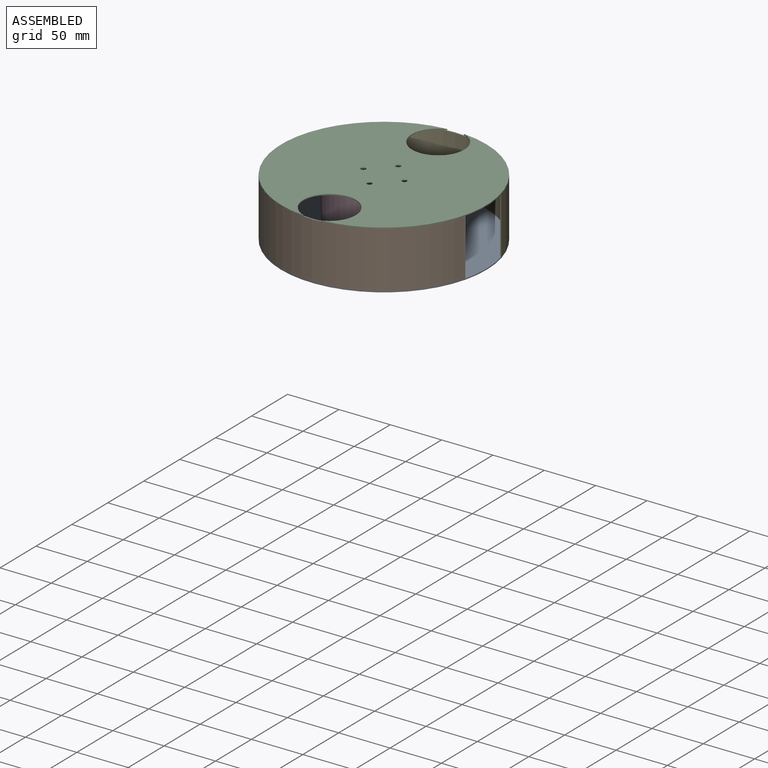
[diagram: assembled view]
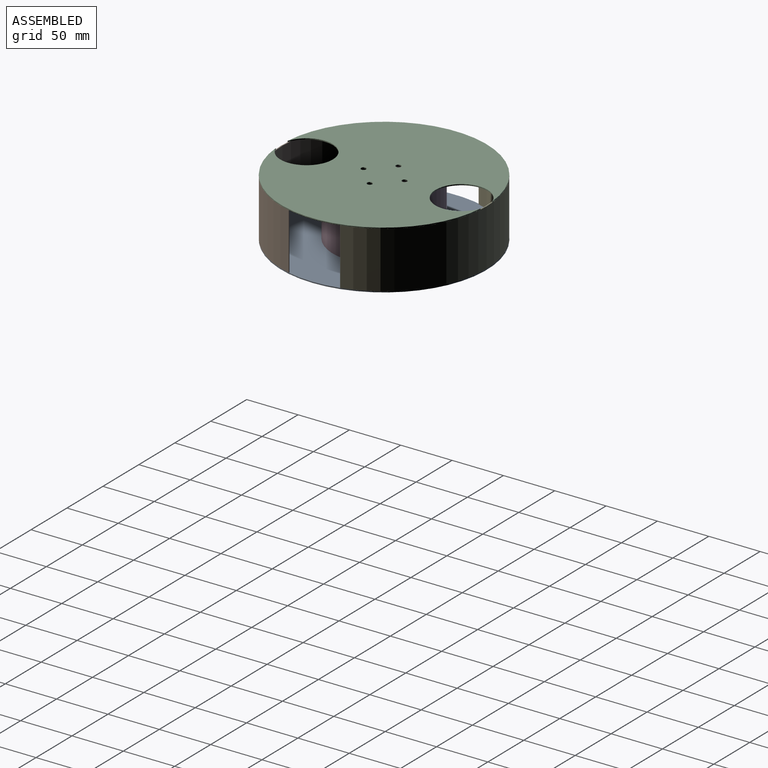
[diagram: assembled view, second angle]
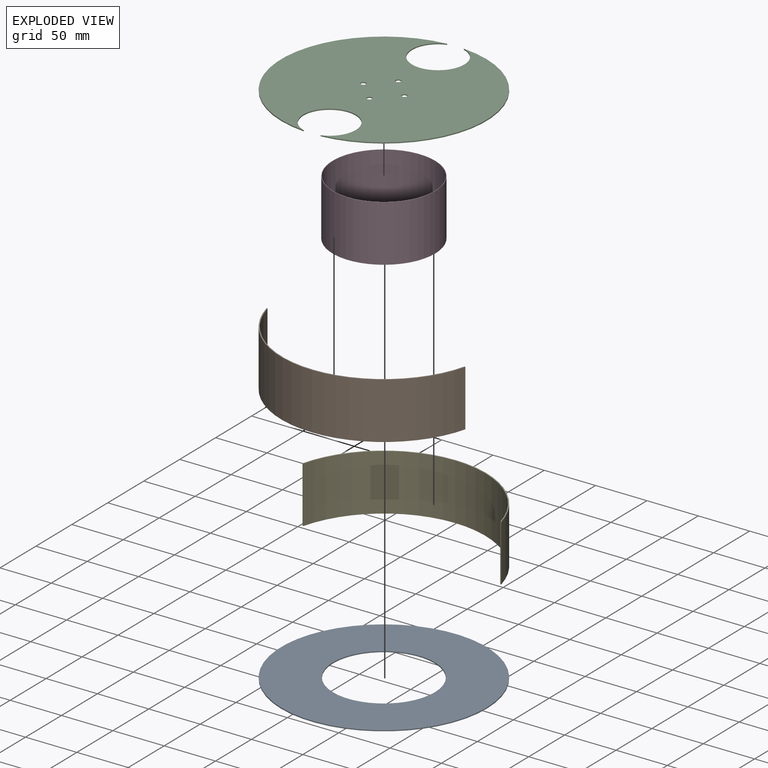
[diagram: exploded view]
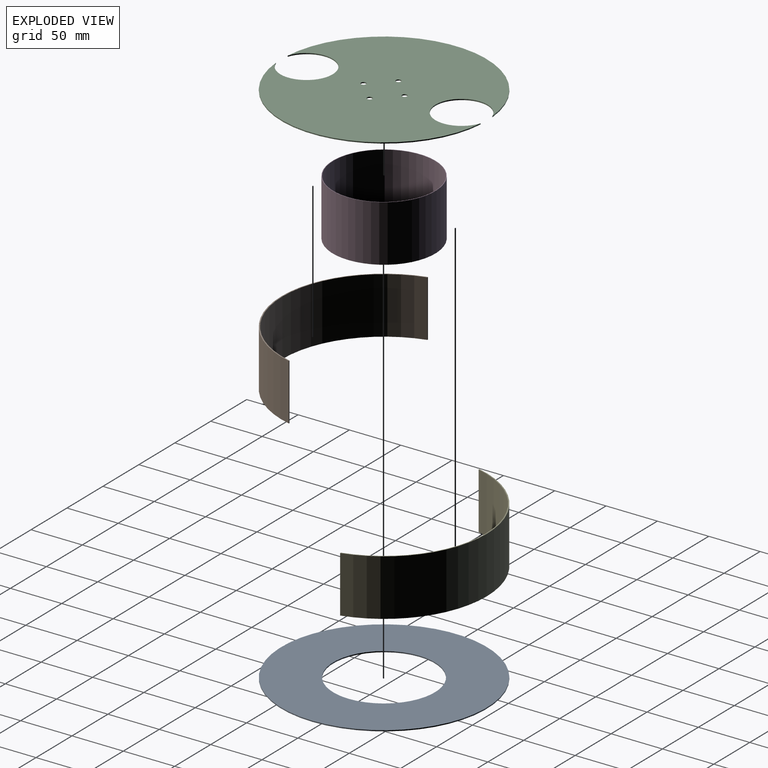
[diagram: exploded view, second angle]
ASSEMBLY  parts=5 mates=4
PART A: 4 faces, bbox 200x200x1 mm
  f0: cylinder r=49.5mm len=99mm, axis (0,0,1), area 311mm2, adj f2,f3
  f1: cylinder r=100mm len=200mm, axis (0,0,1), area 628.3mm2, adj f2,f3
  f2: plane 200x200mm, normal (0,0,-1), area 23718.2mm2, adj f0,f1
  f3: plane 200x200mm, normal (0,0,1), area 23718.2mm2, adj f0,f1
PART B: 6 faces, bbox 75x193.6x55 mm
  f0: plane 55x1mm, normal (1,0,0), area 55mm2, adj f1,f3,f4,f5
  f1: cylinder r=99.01mm len=191.6mm, axis (0,0,-1), area 14326.5mm2, adj f0,f2,f4,f5
  f2: plane 55x1mm, normal (1,0,0), area 55mm2, adj f1,f3,f4,f5
  f3: cylinder r=99.97mm len=193.6mm, axis (0,0,-1), area 14497.4mm2, adj f0,f2,f4,f5
  f4: plane 193.6x75mm, normal (0,0,1), area 259.1mm2, adj f0,f1,f2,f3
  f5: plane 193.6x75mm, normal (0,0,-1), area 259.1mm2, adj f0,f1,f2,f3
PART C: 10 faces, bbox 200x199.3x1 mm
  f0: cylinder r=100mm len=199.34mm, axis (0,0,-1), area 297.9mm2, adj f2,f3,f8,f9
  f1: cylinder r=100mm len=199.34mm, axis (0,0,-1), area 297.9mm2, adj f2,f3,f8,f9
  f2: plane 200x199.34mm, normal (0,0,1), area 27273.6mm2, adj f0,f1,f4,f5,f6,f7,f8,f9
  f3: plane 200x199.34mm, normal (0,0,-1), area 27273.6mm2, adj f0,f1,f4,f5,f6,f7,f8,f9
  f4: cylinder r=2.5mm len=5mm, axis (0,0,1), area 15.7mm2, adj f2,f3
  f5: cylinder r=2.5mm len=5mm, axis (0,0,1), area 15.7mm2, adj f2,f3
  f6: cylinder r=2.5mm len=5mm, axis (0,0,1), area 15.7mm2, adj f2,f3
  f7: cylinder r=2.5mm len=5mm, axis (0,0,1), area 15.7mm2, adj f2,f3
  f8: cylinder r=25.5mm len=51mm, axis (0,0,1), area 143.7mm2, adj f0,f1,f2,f3
  f9: cylinder r=25.5mm len=51mm, axis (0,0,1), area 143.7mm2, adj f0,f1,f2,f3
PART D: 4 faces, bbox 100x100x55 mm
  f0: cylinder r=49.5mm len=99mm, axis (0,0,-1), area 17106mm2, adj f2,f3
  f1: cylinder r=50mm len=100mm, axis (0,0,-1), area 17278.8mm2, adj f2,f3
  f2: plane 100x100mm, normal (0,0,1), area 156.3mm2, adj f0,f1
  f3: plane 100x100mm, normal (0,0,-1), area 156.3mm2, adj f0,f1
PART E: same geometry as B
PLACE A t=(75.98,47.13,41.21)mm
PLACE B rot(axis=(0,0,1),90deg) t=(75.98,47.13,41.21)mm
PLACE C t=(75.98,47.13,96.21)mm
PLACE D t=(75.98,47.13,41.21)mm
PLACE E rot(axis=(0,0,-1),90deg) t=(75.98,47.13,41.21)mm
MATE fastened A.f1 <-> D.f0  axis (0,0,1) through (75.98,47.13,41.21)mm
MATE fastened E.f4 <-> C.f3  axis (0,0,1) through (75.98,147.13,96.21)mm
MATE fastened B.f4 <-> C.f3  axis (0,0,1) through (75.98,-52.87,96.21)mm
MATE fastened C.f0 <-> D.f0  axis (0,0,-1) through (75.98,47.13,96.21)mm
